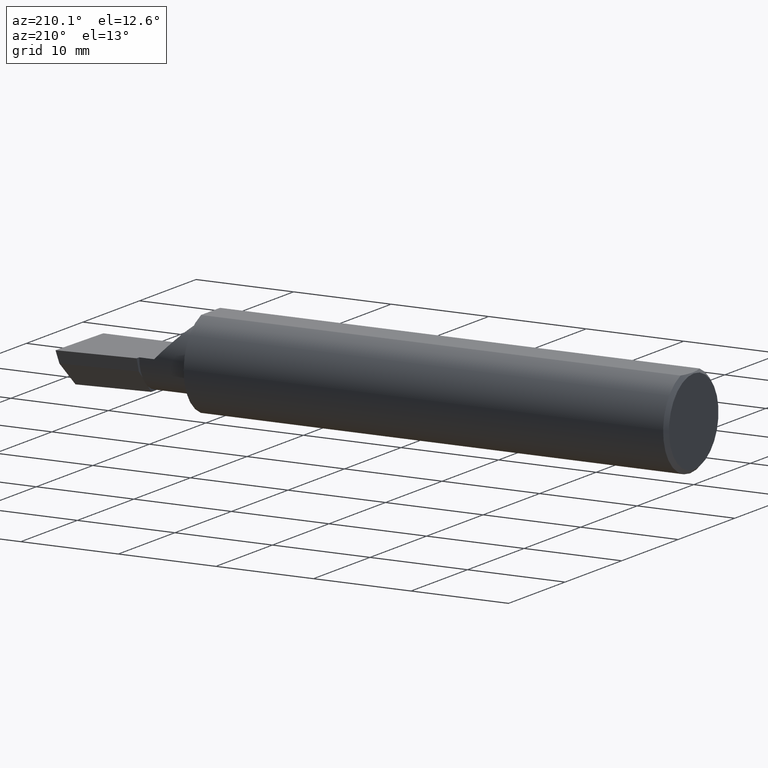
[diagram: clean part render]
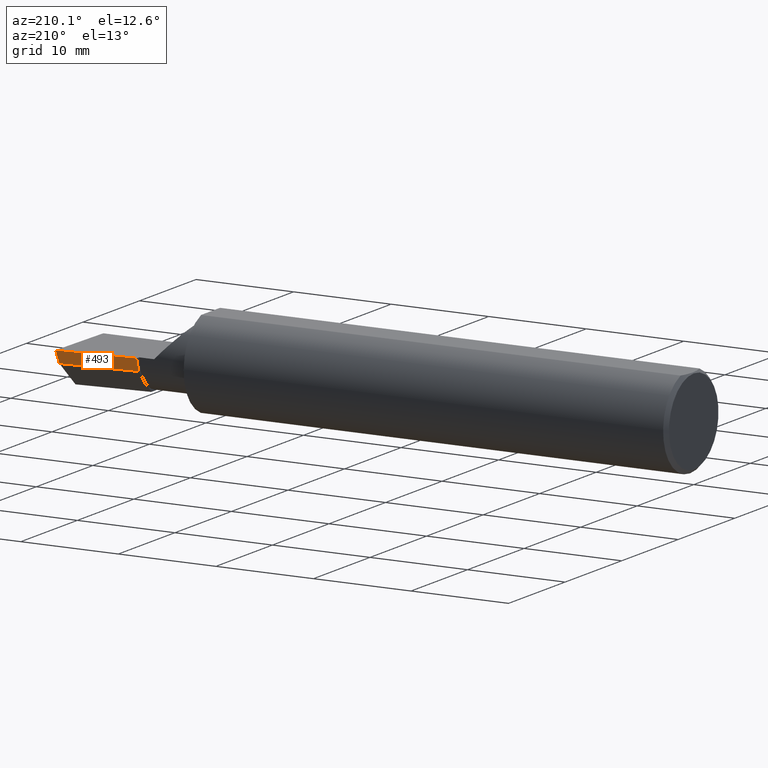
[diagram: same view with one face highlighted and labeled with its STEP entity id]
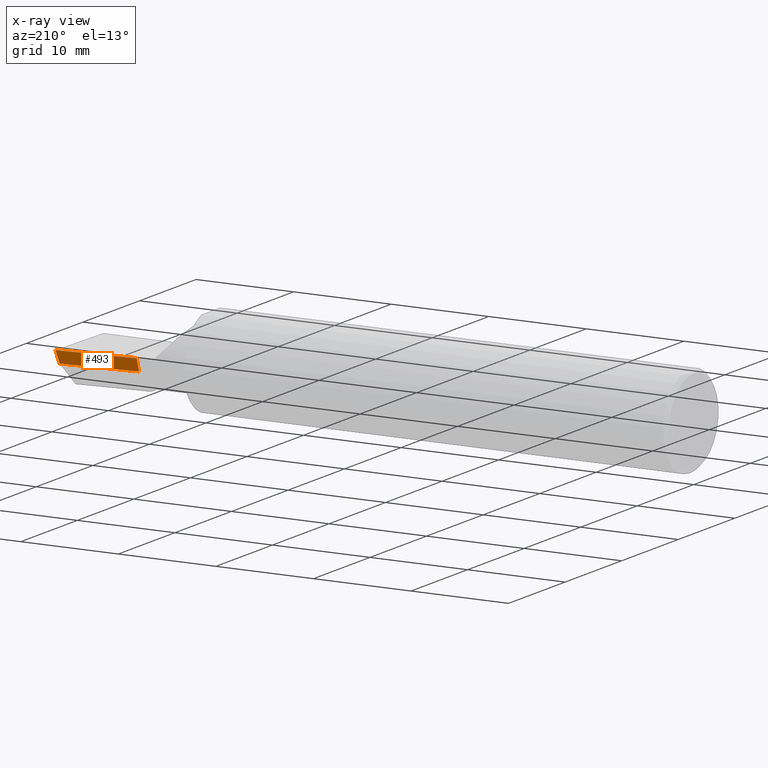
[diagram: x-ray of the same camera — body ghosted, the highlighted face saturated]
A machine part, auxiliary view. The second image highlights one B-rep face of the part: STEP entity #493.
The next image is the same camera in x-ray: the body ghosted, the highlighted face saturated — about 0% of this face is hidden behind the body in this view.
In plain terms, the highlighted planar face has unit normal (-0.0917, 0.9519, -0.2924).
Its self-contained STEP definition (entity closure, byte-faithful):
#9 = FACE_OUTER_BOUND ( 'NONE', #528, .T. ) ;
#29 = CARTESIAN_POINT ( 'NONE',  ( 2.189999999999999947, 0.08544315931885967941, -0.04999999999999999584 ) ) ;
#50 = VERTEX_POINT ( 'NONE', #280 ) ;
#55 = LINE ( 'NONE', #442, #74 ) ;
#74 = VECTOR ( 'NONE', #518, 39.37007874015748854 ) ;
#104 = VECTOR ( 'NONE', #512, 39.37007874015748854 ) ;
#129 = DIRECTION ( 'NONE',  ( -0.09165774897393341725, 0.9519021185660614393, -0.2923717047227303856 ) ) ;
#148 = LINE ( 'NONE', #213, #348 ) ;
#180 = ORIENTED_EDGE ( 'NONE', *, *, #362, .T. ) ;
#200 = DIRECTION ( 'NONE',  ( 0.0000000000000000000, 0.2936076258024060692, 0.9559260233253795702 ) ) ;
#213 = CARTESIAN_POINT ( 'NONE',  ( 2.189999999999999947, 0.09745742888373043478, -0.01088401009027229437 ) ) ;
#217 = EDGE_CURVE ( 'NONE', #475, #499, #55, .T. ) ;
#252 = DIRECTION ( 'NONE',  ( 2.005228508682076280E-18, -0.2936076258024060137, -0.9559260233253795702 ) ) ;
#267 = ORIENTED_EDGE ( 'NONE', *, *, #217, .T. ) ;
#280 = CARTESIAN_POINT ( 'NONE',  ( 2.189999999999999947, 0.1008003950587674363, 3.265412054926814582E-16 ) ) ;
#289 = CARTESIAN_POINT ( 'NONE',  ( 2.509953961983673043, 0.1316084575252021716, -6.829619984160658046E-17 ) ) ;
#291 = VERTEX_POINT ( 'NONE', #352 ) ;
#348 = VECTOR ( 'NONE', #252, 39.37007874015748854 ) ;
#352 = CARTESIAN_POINT ( 'NONE',  ( 2.499999999999978684, 0.1306500000000237194, 8.388960953200464909E-14 ) ) ;
#362 = EDGE_CURVE ( 'NONE', #50, #291, #531, .T. ) ;
#368 = EDGE_CURVE ( 'NONE', #50, #499, #148, .T. ) ;
#386 = DIRECTION ( 'NONE',  ( 0.9953961983671787417, 0.09584575252022456415, -1.028972571603813720E-16 ) ) ;
#399 = LINE ( 'NONE', #510, #104 ) ;
#412 = AXIS2_PLACEMENT_3D ( 'NONE', #289, #129, #200 ) ;
#427 = CARTESIAN_POINT ( 'NONE',  ( 0.5470260790800310913, -0.05740000000000000657, 2.701812985571357332E-16 ) ) ;
#438 = ORIENTED_EDGE ( 'NONE', *, *, #447, .F. ) ;
#442 = CARTESIAN_POINT ( 'NONE',  ( 2.511419111345318811, 0.1163922996227946677, -0.04999999999999999584 ) ) ;
#447 = EDGE_CURVE ( 'NONE', #475, #291, #399, .T. ) ;
#457 = PLANE ( 'NONE',  #412 ) ;
#475 = VERTEX_POINT ( 'NONE', #594 ) ;
#493 = ADVANCED_FACE ( 'NONE', ( #9 ), #457, .T. ) ;
#499 = VERTEX_POINT ( 'NONE', #29 ) ;
#507 = VECTOR ( 'NONE', #386, 39.37007874015748143 ) ;
#510 = CARTESIAN_POINT ( 'NONE',  ( 2.500188977433779769, 0.1311105994646662165, 0.001440373173041438817 ) ) ;
#512 = DIRECTION ( 'NONE',  ( 0.1240019227988267692, 0.3022330132596590113, 0.9451342385281470415 ) ) ;
#518 = DIRECTION ( 'NONE',  ( -0.9953961983671800740, -0.09584575252021031166, 0.0000000000000000000 ) ) ;
#528 = EDGE_LOOP ( 'NONE', ( #438, #267, #591, #180 ) ) ;
#531 = LINE ( 'NONE', #427, #507 ) ;
#591 = ORIENTED_EDGE ( 'NONE', *, *, #368, .F. ) ;
#594 = CARTESIAN_POINT ( 'NONE',  ( 2.493439983562941720, 0.1146611065212078395, -0.04999999999999999584 ) ) ;